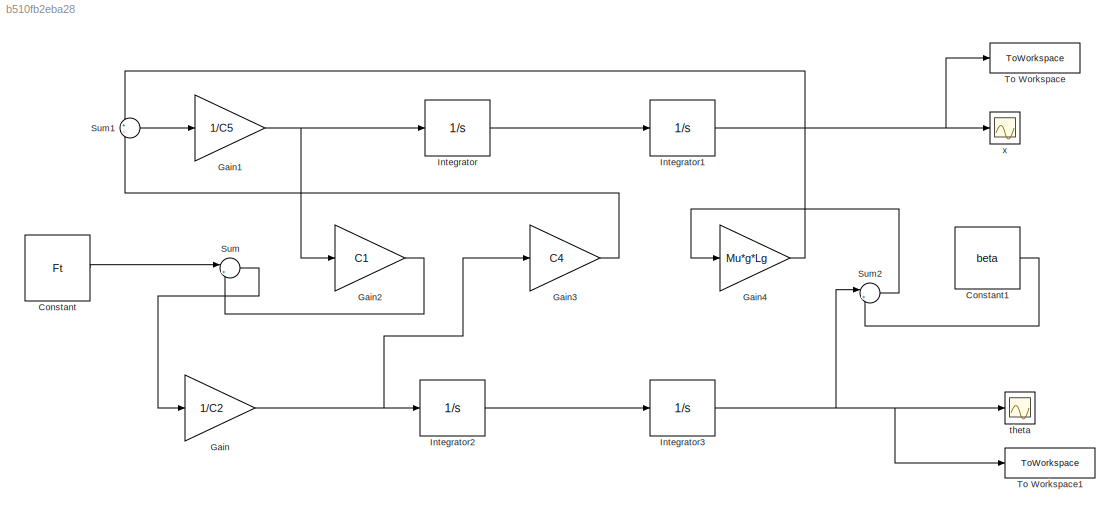
MODEL slx_b510fb2eba28
KIND model
CONFIG AbsTol = auto
CONFIG EnableMultiTasking = off
CONFIG FixedStep = auto
CONFIG MaxStep = auto
CONFIG MinStep = auto
CONFIG RelTol = 1e-3
CONFIG SampleTimeConstraint = Unconstrained
CONFIG SolverName = VariableStepAuto
CONFIG StartTime = 0.0
CONFIG StopTime = 10.0
BLOCK [Constant] Constant
  Value = Ft
BLOCK [Constant] Constant1
  Value = beta
BLOCK [Gain] Gain
  Gain = 1/C2
BLOCK [Gain] Gain1
  Gain = 1/C5
BLOCK [Gain] Gain2
  Gain = C1
BLOCK [Gain] Gain3
  Gain = C4
BLOCK [Gain] Gain4
  Gain = Mu*g*Lg
BLOCK [Integrator] Integrator
BLOCK [Integrator] Integrator1
BLOCK [Integrator] Integrator2
BLOCK [Integrator] Integrator3
BLOCK [Sum] Sum
  Inputs = |+-
BLOCK [Sum] Sum1
  Inputs = +-
BLOCK [Sum] Sum2
  Inputs = |++
BLOCK [ToWorkspace] To Workspace
  FixptAsFi = on
  MaxDataPoints = inf
  SampleTime = -1
  SaveFormat = Structure With Time
  VariableName = simout
BLOCK [ToWorkspace] To Workspace1
  FixptAsFi = on
  MaxDataPoints = inf
  SampleTime = -1
  SaveFormat = Structure With Time
  VariableName = simout1
BLOCK [Scope] theta
  Floating = off
  NumInputPorts = 1
  ScopeSpecificationString = Simulink.scopes.TimeScopeBlockCfg('CurrentConfiguration', extmgr.ConfigurationSet(extmgr.Configuration('Core','General UI',true),extmgr.Configuration('Core','Source UI',true),extmgr.Configuration('Sources','WiredSimulink',true,'DataLoggingVariableName','ScopeData1'),extmgr.Configuration('Visuals','Time Domain',true,'SerializedDisplays',{struct('MinYLimReal','-27418124222926984.00000','MaxYLimReal'...<+1603ch>
BLOCK [Scope] x
  Floating = off
  NumInputPorts = 1
  ScopeSpecificationString = Simulink.scopes.TimeScopeBlockCfg('CurrentConfiguration', extmgr.ConfigurationSet(extmgr.Configuration('Core','General UI',true),extmgr.Configuration('Core','Source UI',true),extmgr.Configuration('Sources','WiredSimulink',true),extmgr.Configuration('Visuals','Time Domain',true,'SerializedDisplays',{struct('MinYLimReal','-3791352645307012.5','MaxYLimReal','421261405034112.4375','YLabelReal','','Min...<+1548ch>
LINE Constant1:1 -> Sum2:2
LINE Constant:1 -> Sum:1
NET Gain1:1 -> Gain2:1, Integrator:1
LINE Gain2:1 -> Sum:2
LINE Gain3:1 -> Sum1:2
LINE Gain4:1 -> Sum1:1
NET Gain:1 -> Gain3:1, Integrator2:1
NET Integrator1:1 -> To Workspace:1, x:1
LINE Integrator2:1 -> Integrator3:1
NET Integrator3:1 -> Sum2:1, To Workspace1:1, theta:1
LINE Integrator:1 -> Integrator1:1
LINE Sum1:1 -> Gain1:1
LINE Sum2:1 -> Gain4:1
LINE Sum:1 -> Gain:1
note: NET lines group one-source signal fan-out (src -> all destinations, sorted); 1:1 wires keep LINE
